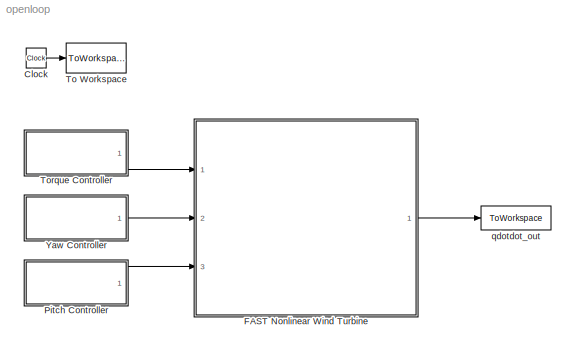
MODEL openloop
KIND model
CONFIG AbsTol = auto
CONFIG FixedStep = DT
CONFIG MaxStep = DT
CONFIG MinStep = auto
CONFIG RelTol = 1e-3
CONFIG Solver = ode4
CONFIG SolverMode = Auto
CONFIG StartTime = 0.0
CONFIG StopTime = TMax
BLOCK [Clock] Clock
  Decimation = 10
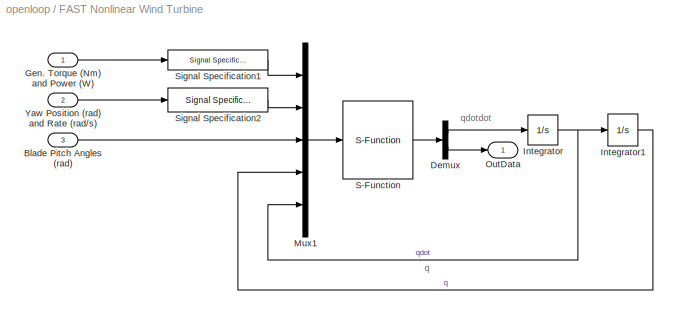
BLOCK [SubSystem] FAST Nonlinear Wind Turbine
  MaskDescription = This block contains the FAST S-Function and blocks that integrate the DOF accelerations to get velocities and displacements.
  MaskIconFrame = on
  MaskIconOpaque = on
  MaskIconRotate = none
  MaskIconUnits = autoscale
  MaskInitialization = clear FAST_SFunc\n
  MaskType = FAST Nonlinear Wind Turbine
  Ports = [3, 1]
  TreatAsAtomicUnit = off
BLOCK [Inport] FAST Nonlinear Wind Turbine/Blade Pitch Angles (rad)
  Port = 3
BLOCK [Demux] FAST Nonlinear Wind Turbine/Demux
  Outputs = [NDOF, NumOuts]
  Ports = [1, 2]
BLOCK [Inport] FAST Nonlinear Wind Turbine/Gen. Torque (Nm) and Power (W)
BLOCK [Integrator] FAST Nonlinear Wind Turbine/Integrator
  InitialCondition = qdot_init
  Ports = [1, 1]
BLOCK [Integrator] FAST Nonlinear Wind Turbine/Integrator1
  InitialCondition = q_init
  Ports = [1, 1]
BLOCK [Mux] FAST Nonlinear Wind Turbine/Mux1
  DisplayOption = bar
  Inputs = 5
  Ports = [5, 1]
BLOCK [Outport] FAST Nonlinear Wind Turbine/OutData
BLOCK [S-Function] FAST Nonlinear Wind Turbine/S-Function
  FunctionName = FAST_SFunc
  Ports = [1, 1]
BLOCK [Reference] FAST Nonlinear Wind Turbine/Signal Specification1  REF=simulink/Signal\nAttributes/Signal Specification
  D = 2
  DataType = double
  OutDataType = sfix(16)
  OutScaling = 2^0
  Ports = [1, 1]
  SamplingMode = auto
  SignalType = real
  SourceBlock = simulink/Signal\nAttributes/Signal Specification
  SourceType = Signal Specification
  Ts = -1
BLOCK [Reference] FAST Nonlinear Wind Turbine/Signal Specification2  REF=simulink/Signal\nAttributes/Signal Specification
  D = 2
  DataType = double
  OutDataType = sfix(16)
  OutScaling = 2^0
  Ports = [1, 1]
  SamplingMode = auto
  SignalType = real
  SourceBlock = simulink/Signal\nAttributes/Signal Specification
  SourceType = Signal Specification
  Ts = -1
BLOCK [Inport] FAST Nonlinear Wind Turbine/Yaw Position (rad) and Rate (rad//s)
  Port = 2
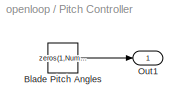
BLOCK [SubSystem] Pitch Controller
  Ports = [0, 1]
  TreatAsAtomicUnit = off
BLOCK [Constant] Pitch Controller/Blade Pitch Angles
  Value = zeros(1,NumBl)'
BLOCK [Outport] Pitch Controller/Out1
BLOCK [ToWorkspace] To Workspace
  MaxDataPoints = inf
  SampleTime = -1
  SaveFormat = Array
  VariableName = Time
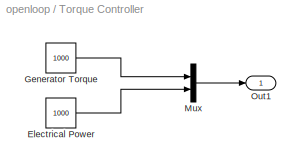
BLOCK [SubSystem] Torque Controller
  Ports = [0, 1]
  TreatAsAtomicUnit = off
BLOCK [Constant] Torque Controller/Electrical Power
  Value = 1000
BLOCK [Constant] Torque Controller/Generator Torque
  Value = 1000
BLOCK [Mux] Torque Controller/Mux
  DisplayOption = bar
  Inputs = 2
  Ports = [2, 1]
BLOCK [Outport] Torque Controller/Out1
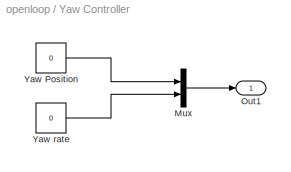
BLOCK [SubSystem] Yaw Controller
  Ports = [0, 1]
  TreatAsAtomicUnit = off
BLOCK [Mux] Yaw Controller/Mux
  DisplayOption = bar
  Inputs = 2
  Ports = [2, 1]
BLOCK [Outport] Yaw Controller/Out1
BLOCK [Constant] Yaw Controller/Yaw Position
  Value = 0
BLOCK [Constant] Yaw Controller/Yaw rate
  Value = 0
BLOCK [ToWorkspace] qdotdot_out
  MaxDataPoints = inf
  SampleTime = -1
  SaveFormat = Array
  VariableName = OutData
ANNOTATION FAST Nonlinear Wind Turbine: q
ANNOTATION FAST Nonlinear Wind Turbine: qdotdot
LINE Clock:1 -> To Workspace:1
LINE FAST Nonlinear Wind Turbine/Blade Pitch Angles (rad):1 -> FAST Nonlinear Wind Turbine/Mux1:3
LINE FAST Nonlinear Wind Turbine/Demux:1 -> FAST Nonlinear Wind Turbine/Integrator:1
LINE FAST Nonlinear Wind Turbine/Demux:2 -> FAST Nonlinear Wind Turbine/OutData:1
LINE FAST Nonlinear Wind Turbine/Gen. Torque (Nm) and Power (W):1 -> FAST Nonlinear Wind Turbine/Signal Specification1:1
LINE FAST Nonlinear Wind Turbine/Integrator1:1 -> FAST Nonlinear Wind Turbine/Mux1:4
NET FAST Nonlinear Wind Turbine/Integrator:1 -> FAST Nonlinear Wind Turbine/Integrator1:1, FAST Nonlinear Wind Turbine/Mux1:5
LINE FAST Nonlinear Wind Turbine/Mux1:1 -> FAST Nonlinear Wind Turbine/S-Function:1
LINE FAST Nonlinear Wind Turbine/S-Function:1 -> FAST Nonlinear Wind Turbine/Demux:1
LINE FAST Nonlinear Wind Turbine/Signal Specification1:1 -> FAST Nonlinear Wind Turbine/Mux1:1
LINE FAST Nonlinear Wind Turbine/Signal Specification2:1 -> FAST Nonlinear Wind Turbine/Mux1:2
LINE FAST Nonlinear Wind Turbine/Yaw Position (rad) and Rate (rad//s):1 -> FAST Nonlinear Wind Turbine/Signal Specification2:1
LINE FAST Nonlinear Wind Turbine:1 -> qdotdot_out:1
LINE Pitch Controller/Blade Pitch Angles:1 -> Pitch Controller/Out1:1
LINE Pitch Controller:1 -> FAST Nonlinear Wind Turbine:3
LINE Torque Controller/Electrical Power:1 -> Torque Controller/Mux:2
LINE Torque Controller/Generator Torque:1 -> Torque Controller/Mux:1
LINE Torque Controller/Mux:1 -> Torque Controller/Out1:1
LINE Torque Controller:1 -> FAST Nonlinear Wind Turbine:1
LINE Yaw Controller/Mux:1 -> Yaw Controller/Out1:1
LINE Yaw Controller/Yaw Position:1 -> Yaw Controller/Mux:1
LINE Yaw Controller/Yaw rate:1 -> Yaw Controller/Mux:2
LINE Yaw Controller:1 -> FAST Nonlinear Wind Turbine:2
note: NET lines group one-source signal fan-out (src -> all destinations, sorted); 1:1 wires keep LINE
